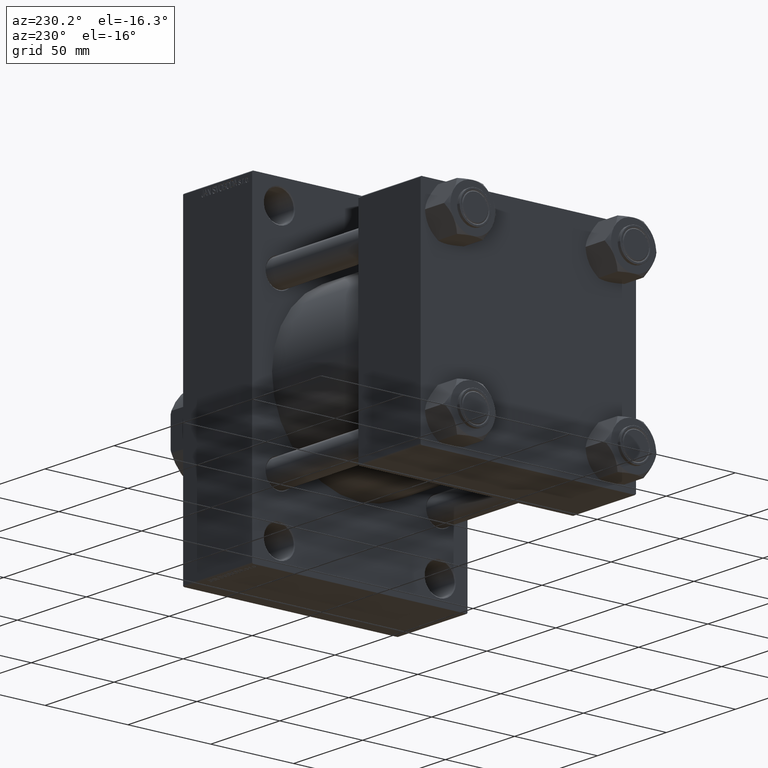
[diagram: clean part render]
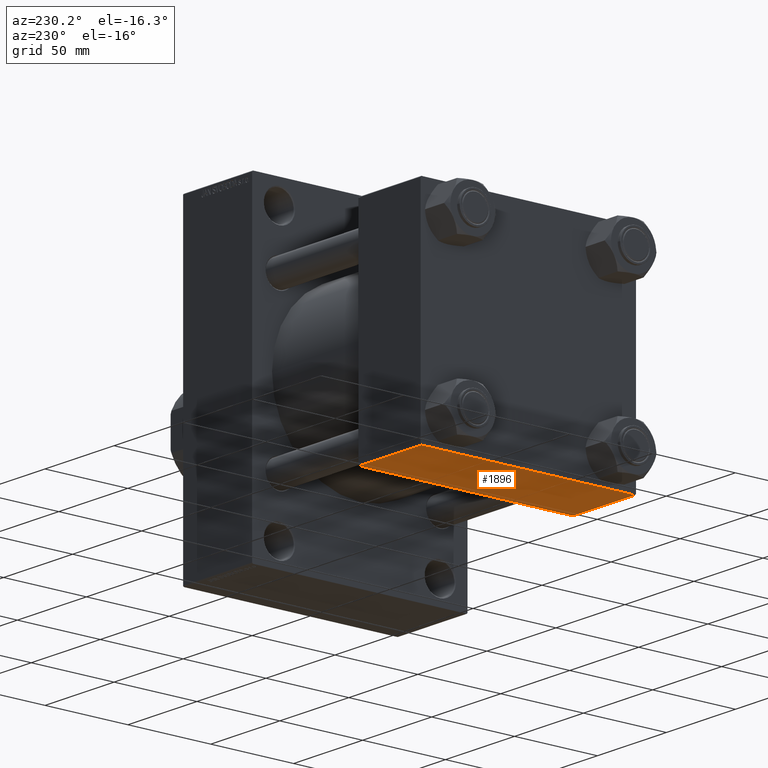
[diagram: same view with one face highlighted and labeled with its STEP entity id]
A machine part, auxiliary view. The second image highlights one B-rep face of the part: STEP entity #1896.
In plain terms, the highlighted planar face has unit normal (0, 0, -1).
Its self-contained STEP definition (entity closure, byte-faithful):
#1237 = VECTOR ( 'NONE', #39185, 1000.000000000000000 ) ;
#1567 = ORIENTED_EDGE ( 'NONE', *, *, #13119, .T. ) ;
#1896 = ADVANCED_FACE ( 'NONE', ( #12924 ), #39211, .T. ) ;
#1982 = CARTESIAN_POINT ( 'NONE',  ( 0.000000000000000000, -64.49999999999994316, -65.00000000000000000 ) ) ;
#4117 = CARTESIAN_POINT ( 'NONE',  ( 45.00000000000000000, -64.49999999999994316, -65.00000000000000000 ) ) ;
#6123 = AXIS2_PLACEMENT_3D ( 'NONE', #24272, #35127, #28597 ) ;
#8559 = CARTESIAN_POINT ( 'NONE',  ( 0.000000000000000000, 64.49999999999997158, -64.99999999999998579 ) ) ;
#10612 = ORIENTED_EDGE ( 'NONE', *, *, #22809, .T. ) ;
#12924 = FACE_OUTER_BOUND ( 'NONE', #35720, .T. ) ;
#13119 = EDGE_CURVE ( 'NONE', #39371, #18145, #26352, .T. ) ;
#13610 = ORIENTED_EDGE ( 'NONE', *, *, #39703, .F. ) ;
#14090 = CARTESIAN_POINT ( 'NONE',  ( 45.00000000000000000, 64.49999999999997158, -64.99999999999998579 ) ) ;
#14361 = VERTEX_POINT ( 'NONE', #37135 ) ;
#16095 = CARTESIAN_POINT ( 'NONE',  ( 45.00000000000000000, 65.00000000000000000, -64.99999999999998579 ) ) ;
#16341 = LINE ( 'NONE', #16095, #26250 ) ;
#18145 = VERTEX_POINT ( 'NONE', #1982 ) ;
#20440 = DIRECTION ( 'NONE',  ( 0.000000000000000000, -1.000000000000000000, -1.067522139062650425E-16 ) ) ;
#22726 = DIRECTION ( 'NONE',  ( -1.000000000000000000, 0.000000000000000000, 0.000000000000000000 ) ) ;
#22809 = EDGE_CURVE ( 'NONE', #37927, #14361, #24477, .T. ) ;
#24272 = CARTESIAN_POINT ( 'NONE',  ( 45.00000000000000000, 65.00000000000000000, -64.99999999999998579 ) ) ;
#24477 = LINE ( 'NONE', #14090, #1237 ) ;
#24794 = VECTOR ( 'NONE', #28943, 1000.000000000000000 ) ;
#26250 = VECTOR ( 'NONE', #20440, 1000.000000000000000 ) ;
#26352 = LINE ( 'NONE', #41065, #28007 ) ;
#28007 = VECTOR ( 'NONE', #22726, 1000.000000000000000 ) ;
#28597 = DIRECTION ( 'NONE',  ( 0.000000000000000000, 1.000000000000000000, 1.067522139062650548E-16 ) ) ;
#28943 = DIRECTION ( 'NONE',  ( 0.000000000000000000, -1.000000000000000000, -1.067522139062650425E-16 ) ) ;
#34740 = ORIENTED_EDGE ( 'NONE', *, *, #36846, .T. ) ;
#35127 = DIRECTION ( 'NONE',  ( 0.000000000000000000, 1.067522139062650548E-16, -1.000000000000000000 ) ) ;
#35720 = EDGE_LOOP ( 'NONE', ( #13610, #10612, #34740, #1567 ) ) ;
#36846 = EDGE_CURVE ( 'NONE', #14361, #39371, #16341, .T. ) ;
#37135 = CARTESIAN_POINT ( 'NONE',  ( 45.00000000000000000, 64.49999999999997158, -64.99999999999998579 ) ) ;
#37927 = VERTEX_POINT ( 'NONE', #8559 ) ;
#39185 = DIRECTION ( 'NONE',  ( 1.000000000000000000, 0.000000000000000000, 0.000000000000000000 ) ) ;
#39211 = PLANE ( 'NONE',  #6123 ) ;
#39371 = VERTEX_POINT ( 'NONE', #4117 ) ;
#39703 = EDGE_CURVE ( 'NONE', #37927, #18145, #43429, .T. ) ;
#41065 = CARTESIAN_POINT ( 'NONE',  ( 0.000000000000000000, -64.49999999999994316, -65.00000000000000000 ) ) ;
#43429 = LINE ( 'NONE', #47043, #24794 ) ;
#47043 = CARTESIAN_POINT ( 'NONE',  ( 0.000000000000000000, 65.00000000000000000, -64.99999999999998579 ) ) ;